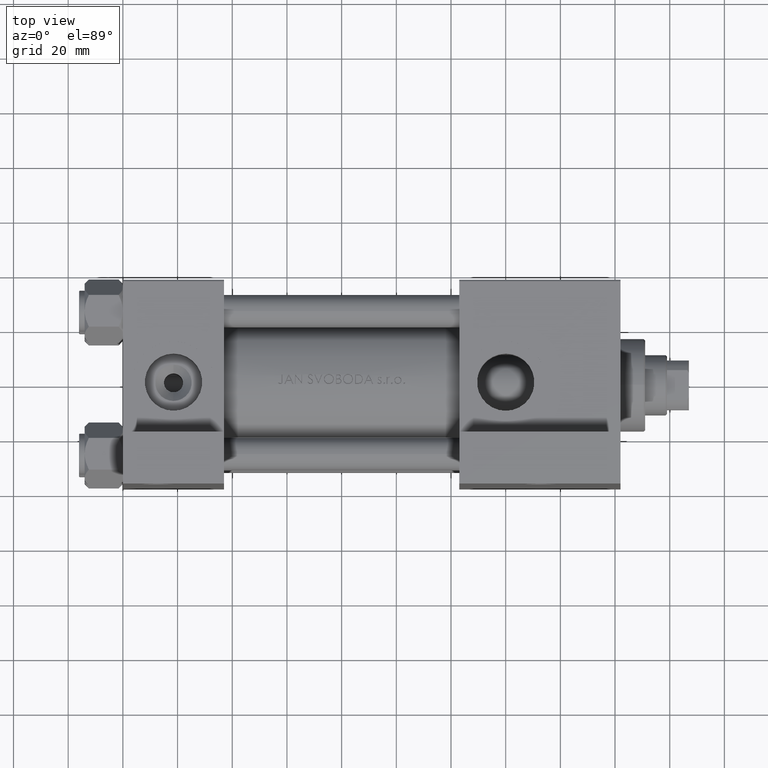
[diagram: clean part render]
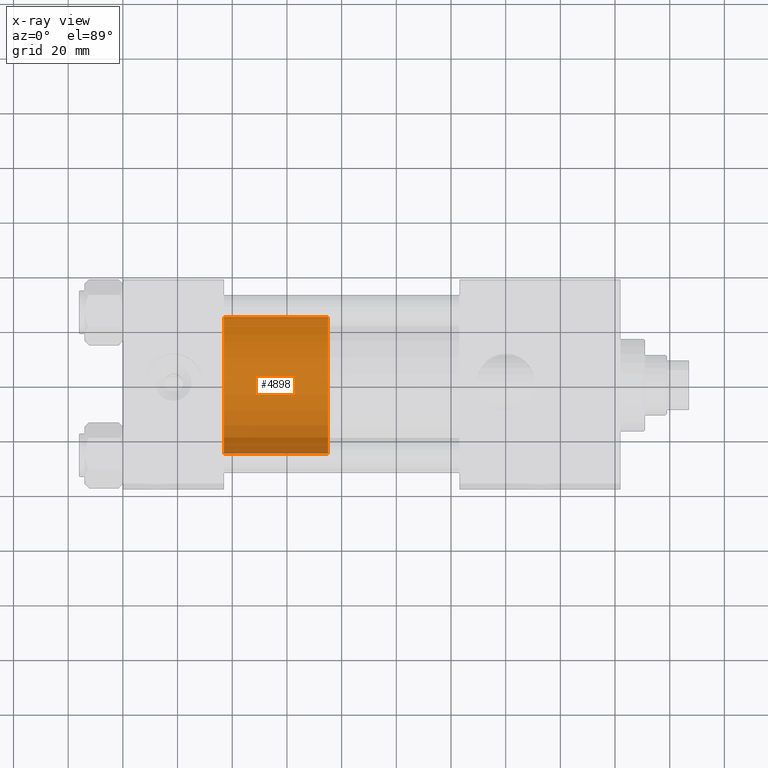
[diagram: x-ray — body ghosted, one internal face saturated and labeled with its STEP entity id]
A machine part, top view, then the same camera in x-ray: the body is ghosted and one INTERNAL B-rep face — a face not visible from any outside direction — is saturated and labeled: STEP entity #4898.
In plain terms, the highlighted cylindrical surface (partial cylindrical patch) has radius 25 mm, axis along (-1, 0, 0).
Its self-contained STEP definition (entity closure, byte-faithful):
#4898 = ADVANCED_FACE ( 'NONE', ( #18419 ), #10707, .T. ) ;
#6133 = AXIS2_PLACEMENT_3D ( 'NONE', #30919, #8043, #23213 ) ;
#7095 = LINE ( 'NONE', #17566, #16241 ) ;
#7717 = ORIENTED_EDGE ( 'NONE', *, *, #45627, .T. ) ;
#8043 = DIRECTION ( 'NONE',  ( 0.000000000000000000, 0.000000000000000000, 1.000000000000000000 ) ) ;
#8368 = CARTESIAN_POINT ( 'NONE',  ( -25.00000000000000000, 0.000000000000000000, 38.00000000000000000 ) ) ;
#8572 = VECTOR ( 'NONE', #27616, 1000.000000000000000 ) ;
#9396 = DIRECTION ( 'NONE',  ( 1.000000000000000000, 0.000000000000000000, 0.000000000000000000 ) ) ;
#10015 = AXIS2_PLACEMENT_3D ( 'NONE', #43228, #24306, #9396 ) ;
#10430 = EDGE_LOOP ( 'NONE', ( #36096, #7717, #18296, #25061 ) ) ;
#10707 = CYLINDRICAL_SURFACE ( 'NONE', #18347, 25.00000000000000000 ) ;
#12542 = CARTESIAN_POINT ( 'NONE',  ( -25.00000000000000000, 0.000000000000000000, 0.000000000000000000 ) ) ;
#14570 = DIRECTION ( 'NONE',  ( -0.000000000000000000, -0.000000000000000000, -1.000000000000000000 ) ) ;
#14769 = CIRCLE ( 'NONE', #10015, 25.00000000000000000 ) ;
#16241 = VECTOR ( 'NONE', #14570, 1000.000000000000000 ) ;
#17566 = CARTESIAN_POINT ( 'NONE',  ( -25.00000000000000000, 0.000000000000000000, 38.00000000000000000 ) ) ;
#18296 = ORIENTED_EDGE ( 'NONE', *, *, #42834, .T. ) ;
#18347 = AXIS2_PLACEMENT_3D ( 'NONE', #41076, #33582, #40824 ) ;
#18419 = FACE_OUTER_BOUND ( 'NONE', #10430, .T. ) ;
#23213 = DIRECTION ( 'NONE',  ( 1.000000000000000000, 0.000000000000000000, 0.000000000000000000 ) ) ;
#24306 = DIRECTION ( 'NONE',  ( 0.000000000000000000, 0.000000000000000000, 1.000000000000000000 ) ) ;
#25061 = ORIENTED_EDGE ( 'NONE', *, *, #33065, .F. ) ;
#25168 = VERTEX_POINT ( 'NONE', #8368 ) ;
#26140 = VERTEX_POINT ( 'NONE', #28272 ) ;
#27616 = DIRECTION ( 'NONE',  ( -0.000000000000000000, -0.000000000000000000, -1.000000000000000000 ) ) ;
#28096 = CARTESIAN_POINT ( 'NONE',  ( 25.00000000000000000, 3.061616997868383043E-15, 38.00000000000000000 ) ) ;
#28272 = CARTESIAN_POINT ( 'NONE',  ( 25.00000000000000000, 3.061616997868383043E-15, 38.00000000000000000 ) ) ;
#28384 = CIRCLE ( 'NONE', #6133, 25.00000000000000000 ) ;
#28544 = VERTEX_POINT ( 'NONE', #12542 ) ;
#29123 = VERTEX_POINT ( 'NONE', #35805 ) ;
#30919 = CARTESIAN_POINT ( 'NONE',  ( 0.000000000000000000, 0.000000000000000000, 0.000000000000000000 ) ) ;
#33065 = EDGE_CURVE ( 'NONE', #25168, #28544, #7095, .T. ) ;
#33582 = DIRECTION ( 'NONE',  ( -0.000000000000000000, -0.000000000000000000, -1.000000000000000000 ) ) ;
#35805 = CARTESIAN_POINT ( 'NONE',  ( 25.00000000000000000, 3.061616997868383043E-15, 0.000000000000000000 ) ) ;
#36096 = ORIENTED_EDGE ( 'NONE', *, *, #36717, .F. ) ;
#36342 = LINE ( 'NONE', #28096, #8572 ) ;
#36717 = EDGE_CURVE ( 'NONE', #26140, #25168, #14769, .T. ) ;
#40824 = DIRECTION ( 'NONE',  ( -1.000000000000000000, 0.000000000000000000, 0.000000000000000000 ) ) ;
#41076 = CARTESIAN_POINT ( 'NONE',  ( 0.000000000000000000, 0.000000000000000000, 38.00000000000000000 ) ) ;
#42834 = EDGE_CURVE ( 'NONE', #29123, #28544, #28384, .T. ) ;
#43228 = CARTESIAN_POINT ( 'NONE',  ( 0.000000000000000000, 0.000000000000000000, 38.00000000000000000 ) ) ;
#45627 = EDGE_CURVE ( 'NONE', #26140, #29123, #36342, .T. ) ;